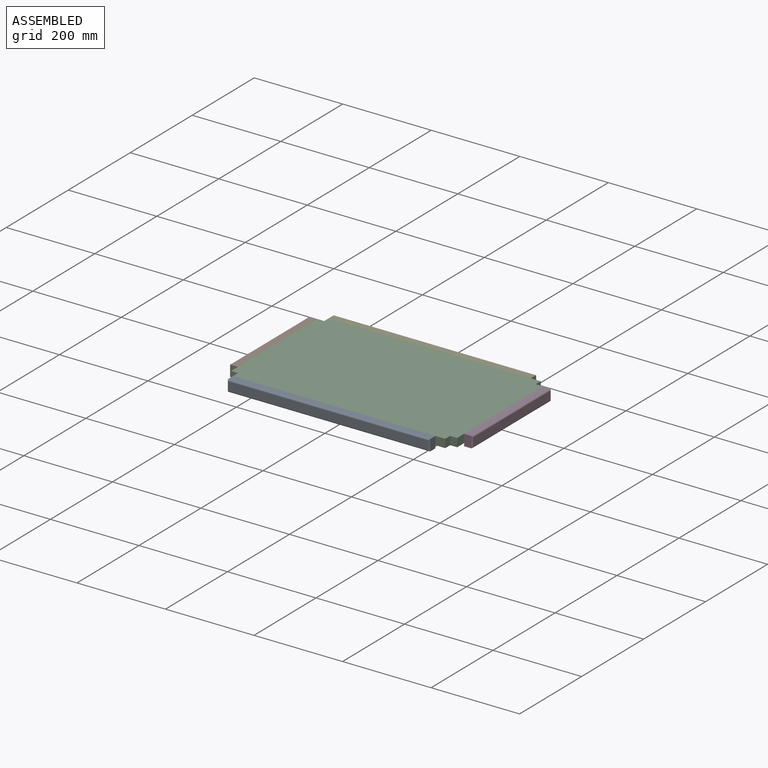
[diagram: assembled view]
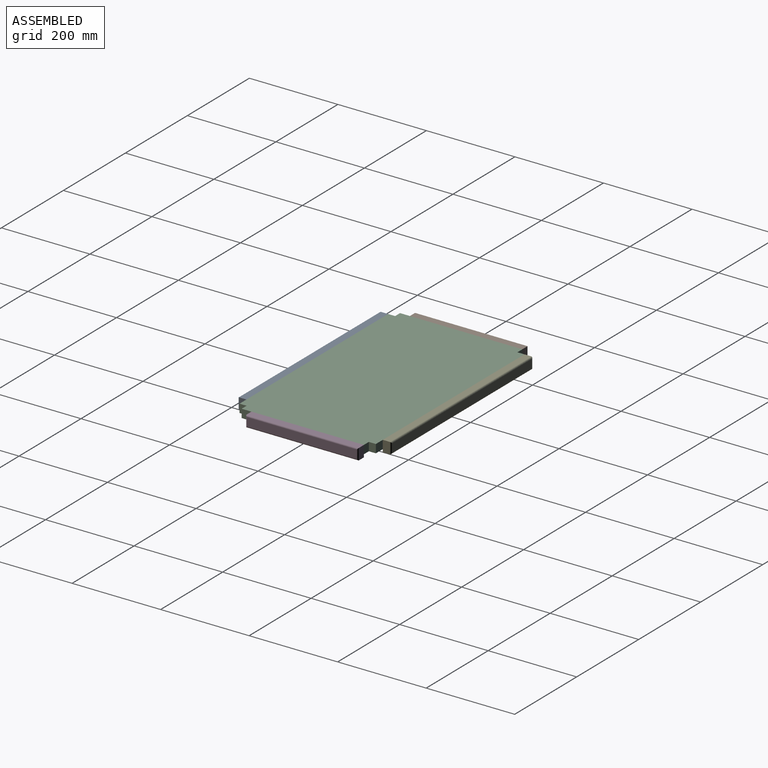
[diagram: assembled view, second angle]
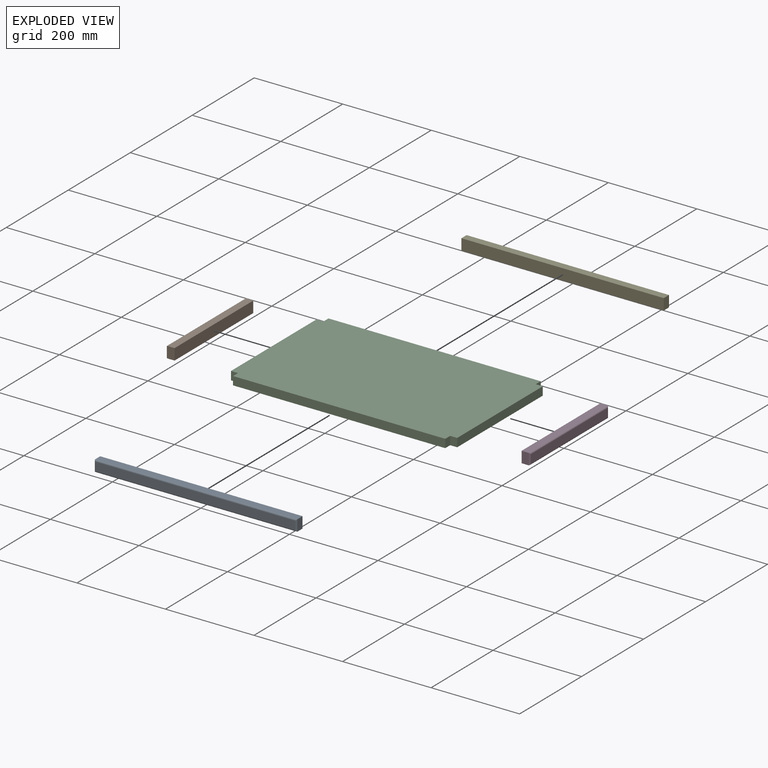
[diagram: exploded view]
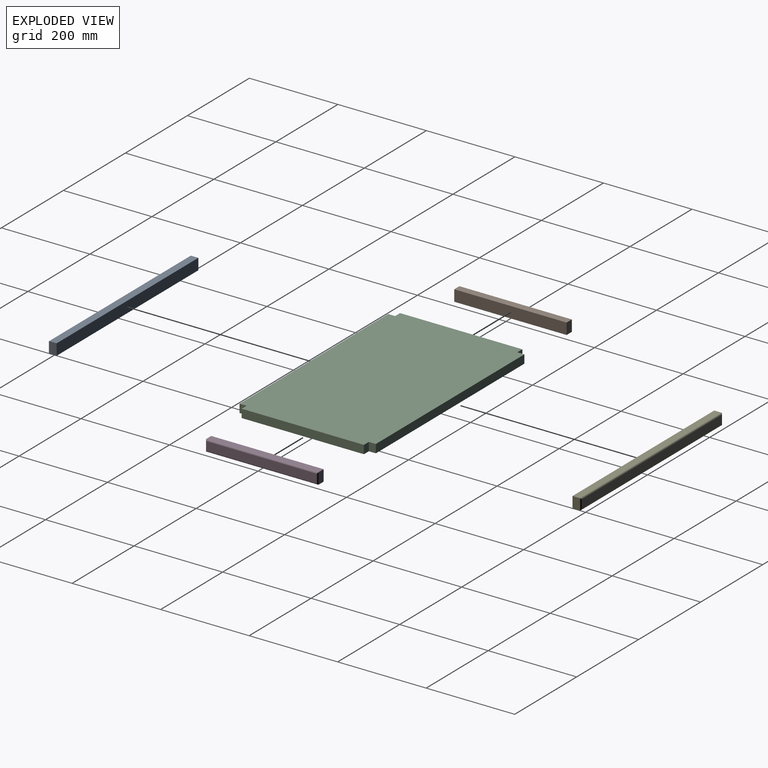
[diagram: exploded view, second angle]
ASSEMBLY  parts=5 mates=4
PART A: 10 faces, bbox 457.2x19.1x25.4 mm
  f0: plane 25.4x15.88mm, normal (-1,0,0), area 403.2mm2, adj f1,f4,f5,f6
  f1: plane 457.2x25.4mm, normal (0,-1,0), area 11612.9mm2, adj f0,f2,f4,f5
  f2: plane 25.4x15.88mm, normal (1,0,0), area 403.2mm2, adj f1,f4,f5,f9
  f3: plane 450.85x19.05mm, normal (0,1,0), area 8588.7mm2, adj f6,f7,f8,f9
  f4: plane 457.2x15.88mm, normal (0,0,-1), area 7258.1mm2, adj f0,f1,f2,f7
  f5: plane 457.2x15.88mm, normal (0,0,1), area 7258.1mm2, adj f0,f1,f2,f8
  f6: cylinder r=3.17mm len=25.4mm, axis (0,0,1), area 115.2mm2, adj f0,f3,f7,f8
  f7: cylinder r=3.17mm len=457.2mm, axis (1,0,0), area 2268.7mm2, adj f3,f4,f6,f9
  f8: cylinder r=3.17mm len=457.2mm, axis (-1,0,0), area 2268.7mm2, adj f3,f5,f6,f9
  f9: cylinder r=3.17mm len=25.4mm, axis (0,0,1), area 115.2mm2, adj f2,f3,f7,f8
PART B: 10 faces, bbox 19.1x254x25.4 mm
  f0: plane 254x25.4mm, normal (1,0,0), area 6451.6mm2, adj f1,f3,f4,f5
  f1: plane 25.4x15.88mm, normal (0,1,0), area 403.2mm2, adj f0,f4,f5,f9
  f2: plane 247.65x19.05mm, normal (-1,0,0), area 4717.7mm2, adj f6,f7,f8,f9
  f3: plane 25.4x15.88mm, normal (0,-1,0), area 403.2mm2, adj f0,f4,f5,f6
  f4: plane 254x15.88mm, normal (0,0,-1), area 4032.3mm2, adj f0,f1,f3,f7
  f5: plane 254x15.88mm, normal (0,0,1), area 4032.3mm2, adj f0,f1,f3,f8
  f6: cylinder r=3.17mm len=25.4mm, axis (0,0,1), area 115.2mm2, adj f2,f3,f7,f8
  f7: cylinder r=3.17mm len=254mm, axis (0,1,0), area 1255.3mm2, adj f2,f4,f6,f9
  f8: cylinder r=3.17mm len=254mm, axis (0,-1,0), area 1255.3mm2, adj f2,f5,f6,f9
  f9: cylinder r=3.17mm len=25.4mm, axis (0,0,-1), area 115.2mm2, adj f1,f2,f7,f8
PART C: 14 faces, bbox 511.2x308x19.1 mm
  f0: plane 276.23x19.05mm, normal (1,0,0), area 5262.1mm2, adj f4,f5,f8,f12
  f1: plane 479.43x19.05mm, normal (0,1,0), area 9133mm2, adj f4,f5,f7,f13
  f2: plane 276.23x19.05mm, normal (-1,0,0), area 5262.1mm2, adj f4,f5,f6,f10
  f3: plane 479.43x19.05mm, normal (0,-1,0), area 9133mm2, adj f4,f5,f9,f11
  f4: plane 511.18x307.98mm, normal (0,0,1), area 156421.1mm2, adj f0,f1,f2,f3,f6,f7,f8,f9
  f5: plane 511.18x307.98mm, normal (0,0,-1), area 156421.1mm2, adj f0,f1,f2,f3,f6,f7,f8,f9
  f6: plane 19.05x15.88mm, normal (0,1,0), area 302.4mm2, adj f2,f4,f5,f7
  f7: plane 19.05x15.88mm, normal (-1,0,0), area 302.4mm2, adj f1,f4,f5,f6
  f8: plane 19.05x15.88mm, normal (0,-1,0), area 302.4mm2, adj f0,f4,f5,f9
  f9: plane 19.05x15.88mm, normal (1,0,0), area 302.4mm2, adj f3,f4,f5,f8
  f10: plane 19.05x15.88mm, normal (0,-1,0), area 302.4mm2, adj f2,f4,f5,f11
  f11: plane 19.05x15.88mm, normal (-1,0,0), area 302.4mm2, adj f3,f4,f5,f10
  f12: plane 19.05x15.88mm, normal (0,1,0), area 302.4mm2, adj f0,f4,f5,f13
  f13: plane 19.05x15.88mm, normal (1,0,0), area 302.4mm2, adj f1,f4,f5,f12
PART D: same geometry as B
PART E: same geometry as A
PLACE A rot(axis=(0,0,1),180deg) t=(-7.94,-38.1,0)mm
PLACE B t=(-44.45,11.11,0)mm
PLACE C t=(-33.41,51.22,-19.05)mm
PLACE D rot(axis=(0,0,-1),180deg) t=(44.45,11.11,0)mm
PLACE E t=(-14.29,38.1,0)mm
MATE fastened C.f0 <-> D.f0  axis (1,0,0) through (255.59,138.11,0)mm
MATE fastened C.f1 <-> E.f1  axis (0,1,0) through (-239.71,153.99,0)mm
MATE fastened C.f3 <-> A.f1  axis (0,-1,0) through (-239.71,-153.99,0)mm
MATE fastened C.f2 <-> B.f0  axis (-1,0,0) through (-255.59,138.11,0)mm
